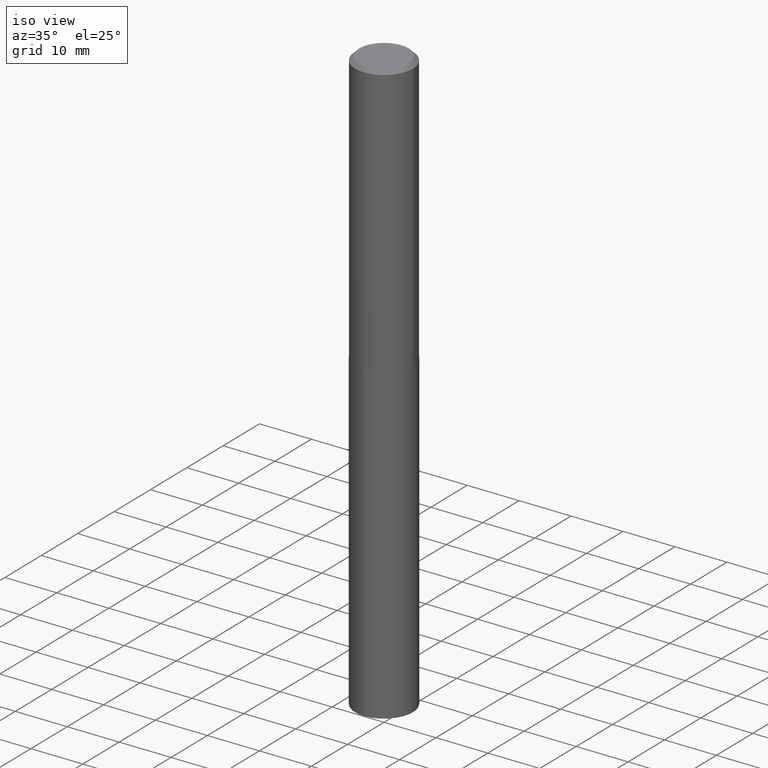
[diagram: clean part render]
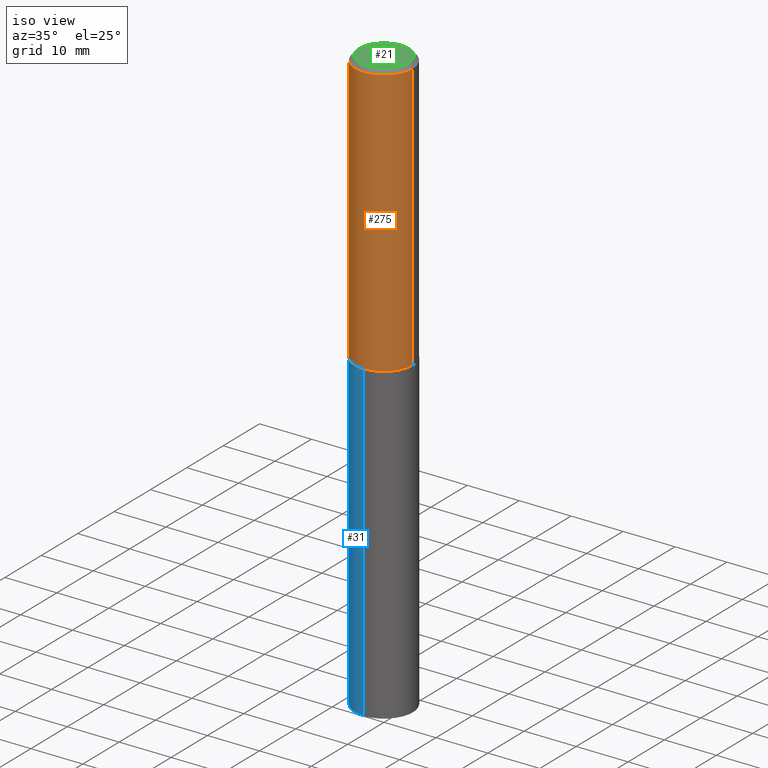
[diagram: same view with three faces highlighted in distinct colors, each labeled with its STEP entity id]
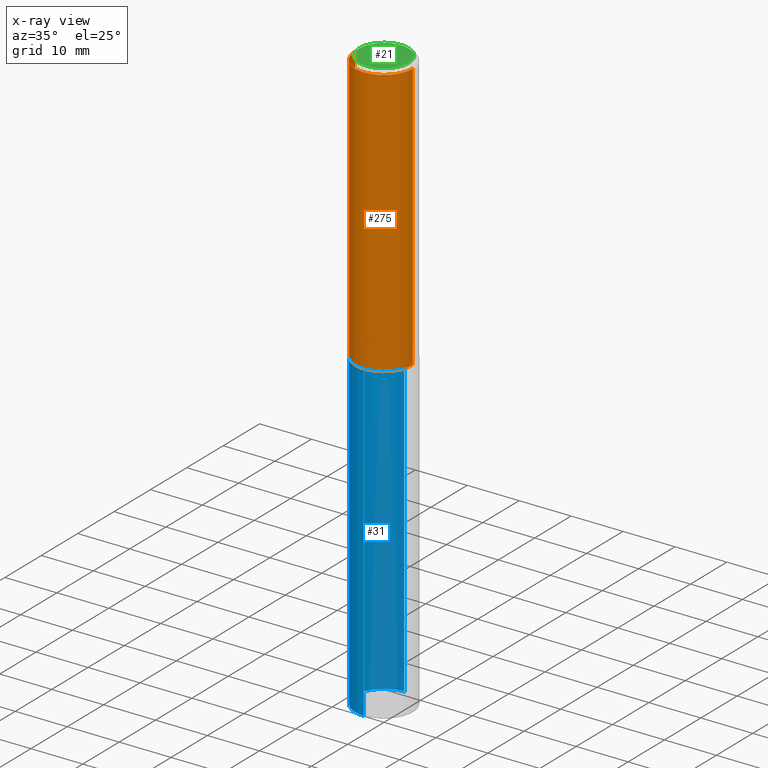
[diagram: x-ray of the same camera — body ghosted, the three highlighted faces saturated]
A machine part, iso view with three faces highlighted in distinct colors.
The next image is the same camera in x-ray (body ghosted, the three faces saturated) — at least one of them is partly hidden behind the body in this view.
Their STEP definitions:

[orange] entity #275 — the highlighted cylindrical surface (edge-blend (fillet) strip) has radius 5.5563 mm, axis along (-0, 0, 1).
#1 = AXIS2_PLACEMENT_3D ( 'NONE', #376, #265, #388 ) ;
#13 = CARTESIAN_POINT ( 'NONE',  ( 0.2187500000000000833, -1.527523085743871435E-15, 1.066663669705361305E-29 ) ) ;
#39 = EDGE_CURVE ( 'NONE', #188, #110, #205, .T. ) ;
#43 = LINE ( 'NONE', #13, #247 ) ;
#44 = EDGE_CURVE ( 'NONE', #299, #306, #96, .T. ) ;
#53 = EDGE_CURVE ( 'NONE', #110, #306, #43, .T. ) ;
#54 = AXIS2_PLACEMENT_3D ( 'NONE', #66, #126, #285 ) ;
#66 = CARTESIAN_POINT ( 'NONE',  ( 5.042556678353752550E-29, -7.199434520694567863E-15, -2.062000000000000277 ) ) ;
#73 = LINE ( 'NONE', #170, #82 ) ;
#79 = CARTESIAN_POINT ( 'NONE',  ( 0.2187500000000000000, -1.636631877582719746E-15, -0.03125000000000019429 ) ) ;
#82 = VECTOR ( 'NONE', #316, 39.37007874015748143 ) ;
#96 = CIRCLE ( 'NONE', #109, 0.2187500000000000000 ) ;
#109 = AXIS2_PLACEMENT_3D ( 'NONE', #348, #252, #287 ) ;
#110 = VERTEX_POINT ( 'NONE', #220 ) ;
#116 = ORIENTED_EDGE ( 'NONE', *, *, #39, .T. ) ;
#126 = DIRECTION ( 'NONE',  ( -2.445468806185136597E-29, 3.491481338843145583E-15, 1.000000000000000000 ) ) ;
#136 = FACE_OUTER_BOUND ( 'NONE', #323, .T. ) ;
#170 = CARTESIAN_POINT ( 'NONE',  ( -0.2187500000000000833, 1.554312234475219748E-15, -1.076017050993261043E-29 ) ) ;
#188 = VERTEX_POINT ( 'NONE', #255 ) ;
#196 = DIRECTION ( 'NONE',  ( -2.445468806185136877E-29, 3.491481338843145188E-15, 1.000000000000000000 ) ) ;
#203 = EDGE_CURVE ( 'NONE', #188, #299, #73, .T. ) ;
#205 = CIRCLE ( 'NONE', #54, 0.2187500000000002220 ) ;
#212 = ORIENTED_EDGE ( 'NONE', *, *, #44, .F. ) ;
#220 = CARTESIAN_POINT ( 'NONE',  ( 0.2187500000000002220, -8.726957606438439495E-15, -2.062000000000000277 ) ) ;
#247 = VECTOR ( 'NONE', #196, 39.37007874015748143 ) ;
#252 = DIRECTION ( 'NONE',  ( -2.445468806185136597E-29, 3.491481338843145583E-15, 1.000000000000000000 ) ) ;
#255 = CARTESIAN_POINT ( 'NONE',  ( -0.2187500000000002220, -5.645122286219346340E-15, -2.062000000000000277 ) ) ;
#258 = CYLINDRICAL_SURFACE ( 'NONE', #1, 0.2187500000000000833 ) ;
#265 = DIRECTION ( 'NONE',  ( -2.445468806185136597E-29, 3.491481338843145583E-15, 1.000000000000000000 ) ) ;
#269 = ORIENTED_EDGE ( 'NONE', *, *, #53, .T. ) ;
#275 = ADVANCED_FACE ( 'NONE', ( #136 ), #258, .T. ) ;
#285 = DIRECTION ( 'NONE',  ( 1.000000000000000000, -6.982962677686265133E-15, 0.000000000000000000 ) ) ;
#287 = DIRECTION ( 'NONE',  ( 1.000000000000000000, -6.982962677686266711E-15, 0.000000000000000000 ) ) ;
#299 = VERTEX_POINT ( 'NONE', #356 ) ;
#306 = VERTEX_POINT ( 'NONE', #79 ) ;
#316 = DIRECTION ( 'NONE',  ( -2.445468806185136877E-29, 3.491481338843145188E-15, 1.000000000000000000 ) ) ;
#323 = EDGE_LOOP ( 'NONE', ( #368, #116, #269, #212 ) ) ;
#348 = CARTESIAN_POINT ( 'NONE',  ( 7.642090019328598283E-31, -1.091087918388489651E-16, -0.03125000000000019429 ) ) ;
#356 = CARTESIAN_POINT ( 'NONE',  ( -0.2187500000000000000, -2.099959421791488142E-15, -0.03125000000000019429 ) ) ;
#368 = ORIENTED_EDGE ( 'NONE', *, *, #203, .F. ) ;
#376 = CARTESIAN_POINT ( 'NONE',  ( 0.000000000000000000, 0.000000000000000000, 0.000000000000000000 ) ) ;
#388 = DIRECTION ( 'NONE',  ( 1.000000000000000000, -6.982962677686266711E-15, 4.876176775795935793E-29 ) ) ;

[blue] entity #31 — the highlighted cylindrical surface (edge-blend (fillet) strip) has radius 5.5562 mm, axis along (-0, 0, 1).
#5 = DIRECTION ( 'NONE',  ( -6.982962677686265133E-15, -1.000000000000000000, 3.746534391310989557E-15 ) ) ;
#12 = CIRCLE ( 'NONE', #358, 0.2187500000000000000 ) ;
#16 = CARTESIAN_POINT ( 'NONE',  ( 1.554312234475328019E-15, 0.2187499999999927836, -2.062500000000000888 ) ) ;
#28 = ORIENTED_EDGE ( 'NONE', *, *, #161, .F. ) ;
#31 = ADVANCED_FACE ( 'NONE', ( #87 ), #304, .T. ) ;
#36 = VERTEX_POINT ( 'NONE', #186 ) ;
#48 = EDGE_CURVE ( 'NONE', #156, #36, #171, .T. ) ;
#52 = CARTESIAN_POINT ( 'NONE',  ( -1.527523085743819961E-15, -0.2187500000000071887, -2.062499999999999556 ) ) ;
#72 = CARTESIAN_POINT ( 'NONE',  ( 1.554312234475328217E-15, 0.2187499999999845957, -4.441386114155693399 ) ) ;
#80 = VERTEX_POINT ( 'NONE', #16 ) ;
#86 = ORIENTED_EDGE ( 'NONE', *, *, #387, .T. ) ;
#87 = FACE_OUTER_BOUND ( 'NONE', #235, .T. ) ;
#101 = CARTESIAN_POINT ( 'NONE',  ( 5.043779412756844791E-29, -7.201180261363988578E-15, -2.062500000000000000 ) ) ;
#102 = DIRECTION ( 'NONE',  ( -6.982962677686265133E-15, -1.000000000000000000, 2.497689594207326371E-15 ) ) ;
#103 = AXIS2_PLACEMENT_3D ( 'NONE', #224, #375, #102 ) ;
#134 = DIRECTION ( 'NONE',  ( -6.982962677686265133E-15, -1.000000000000000000, 3.746534391310989557E-15 ) ) ;
#147 = LINE ( 'NONE', #268, #338 ) ;
#156 = VERTEX_POINT ( 'NONE', #72 ) ;
#161 = EDGE_CURVE ( 'NONE', #80, #353, #12, .T. ) ;
#171 = CIRCLE ( 'NONE', #103, 0.2187500000000000000 ) ;
#177 = LINE ( 'NONE', #229, #230 ) ;
#182 = ORIENTED_EDGE ( 'NONE', *, *, #311, .F. ) ;
#186 = CARTESIAN_POINT ( 'NONE',  ( -1.527523085743762572E-15, -0.2187500000000155986, -4.441386114155691622 ) ) ;
#224 = CARTESIAN_POINT ( 'NONE',  ( 1.086113905264066496E-28, -1.550720597640823083E-14, -4.441386114155692511 ) ) ;
#229 = CARTESIAN_POINT ( 'NONE',  ( 1.554312234475269249E-15, 0.2187499999999927836, -2.062500000000000888 ) ) ;
#230 = VECTOR ( 'NONE', #386, 39.37007874015748143 ) ;
#235 = EDGE_LOOP ( 'NONE', ( #182, #243, #86, #28 ) ) ;
#238 = AXIS2_PLACEMENT_3D ( 'NONE', #274, #371, #5 ) ;
#243 = ORIENTED_EDGE ( 'NONE', *, *, #48, .T. ) ;
#268 = CARTESIAN_POINT ( 'NONE',  ( -1.527523085743819961E-15, -0.2187500000000071887, -2.062499999999999556 ) ) ;
#274 = CARTESIAN_POINT ( 'NONE',  ( 5.043779412756844791E-29, -7.201180261363988578E-15, -2.062500000000000000 ) ) ;
#304 = CYLINDRICAL_SURFACE ( 'NONE', #238, 0.2187500000000000000 ) ;
#311 = EDGE_CURVE ( 'NONE', #156, #80, #177, .T. ) ;
#338 = VECTOR ( 'NONE', #389, 39.37007874015748143 ) ;
#353 = VERTEX_POINT ( 'NONE', #52 ) ;
#358 = AXIS2_PLACEMENT_3D ( 'NONE', #101, #378, #134 ) ;
#371 = DIRECTION ( 'NONE',  ( -2.445413256762189214E-29, 3.491560888778482926E-15, 1.000000000000000000 ) ) ;
#375 = DIRECTION ( 'NONE',  ( -2.445413256762189214E-29, 3.491560888778482926E-15, 1.000000000000000000 ) ) ;
#378 = DIRECTION ( 'NONE',  ( -2.445413256762189214E-29, 3.491560888778482926E-15, 1.000000000000000000 ) ) ;
#386 = DIRECTION ( 'NONE',  ( -2.445413256762189214E-29, 3.491560888778483320E-15, 1.000000000000000000 ) ) ;
#387 = EDGE_CURVE ( 'NONE', #36, #353, #147, .T. ) ;
#389 = DIRECTION ( 'NONE',  ( -2.445413256762189214E-29, 3.491560888778483320E-15, 1.000000000000000000 ) ) ;

[green] entity #21 — the highlighted planar face has unit normal (0, -0, -1).
#4 = PLANE ( 'NONE',  #88 ) ;
#10 = CARTESIAN_POINT ( 'NONE',  ( -2.335971725809272108E-47, 3.335148527799635725E-33, 9.552245033349344265E-19 ) ) ;
#18 = CIRCLE ( 'NONE', #65, 0.1874999999999999722 ) ;
#21 = ADVANCED_FACE ( 'NONE', ( #121 ), #4, .F. ) ;
#27 = DIRECTION ( 'NONE',  ( -2.445468806185136597E-29, 3.491481338843145583E-15, 1.000000000000000000 ) ) ;
#65 = AXIS2_PLACEMENT_3D ( 'NONE', #10, #314, #288 ) ;
#84 = VERTEX_POINT ( 'NONE', #137 ) ;
#88 = AXIS2_PLACEMENT_3D ( 'NONE', #215, #280, #244 ) ;
#113 = CARTESIAN_POINT ( 'NONE',  ( -2.335971725809272108E-47, 3.335148527799635725E-33, 9.552245033349344265E-19 ) ) ;
#121 = FACE_OUTER_BOUND ( 'NONE', #328, .T. ) ;
#137 = CARTESIAN_POINT ( 'NONE',  ( -0.1874999999999999722, 1.363859897985598178E-15, 9.552245033255873107E-19 ) ) ;
#146 = VERTEX_POINT ( 'NONE', #261 ) ;
#195 = AXIS2_PLACEMENT_3D ( 'NONE', #113, #27, #237 ) ;
#215 = CARTESIAN_POINT ( 'NONE',  ( -1.167985862904636054E-47, 1.667574263899817862E-33, 4.776122516674672132E-19 ) ) ;
#228 = EDGE_CURVE ( 'NONE', #146, #84, #18, .T. ) ;
#237 = DIRECTION ( 'NONE',  ( 1.000000000000000000, -6.982962677686266711E-15, 4.876179125272552877E-29 ) ) ;
#244 = DIRECTION ( 'NONE',  ( -1.000000000000000000, 6.982962677686265922E-15, -4.876176775795935793E-29 ) ) ;
#261 = CARTESIAN_POINT ( 'NONE',  ( 0.1874999999999999722, -1.448093051716766899E-15, 9.552245033445756318E-19 ) ) ;
#277 = ORIENTED_EDGE ( 'NONE', *, *, #363, .T. ) ;
#280 = DIRECTION ( 'NONE',  ( 2.438088387897960049E-29, -3.491481338843145188E-15, -1.000000000000000000 ) ) ;
#288 = DIRECTION ( 'NONE',  ( 1.000000000000000000, -6.982962677686266711E-15, 4.876179125272552877E-29 ) ) ;
#302 = ORIENTED_EDGE ( 'NONE', *, *, #228, .T. ) ;
#314 = DIRECTION ( 'NONE',  ( -2.445468806185136597E-29, 3.491481338843145583E-15, 1.000000000000000000 ) ) ;
#328 = EDGE_LOOP ( 'NONE', ( #277, #302 ) ) ;
#363 = EDGE_CURVE ( 'NONE', #84, #146, #366, .T. ) ;
#366 = CIRCLE ( 'NONE', #195, 0.1874999999999999722 ) ;